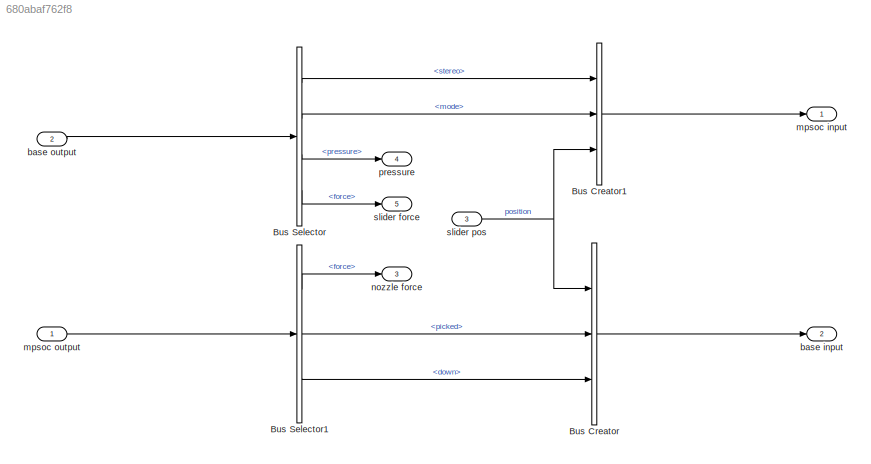
MODEL slx_680abaf762f8
KIND model
WORKSPACE source: MAT-file member
WORKSPACE ini_block_hpos = -0.4
BLOCK [BusCreator] Bus Creator
  DisplayOption = bar
  Inputs = 3
  Ports = [3, 1]
BLOCK [BusCreator] Bus Creator1
  DisplayOption = bar
  Inputs = 3
  Ports = [3, 1]
BLOCK [BusSelector] Bus Selector
  OutputSignals = stereo,mode,pressure,force
  Ports = [1, 4]
BLOCK [BusSelector] Bus Selector1
  OutputSignals = force,picked,down
  Ports = [1, 3]
BLOCK [Outport] base input
  BusOutputAsStruct = on
  IconDisplay = Port number
  OutDataTypeStr = Bus: slBusSliderStatus
  Port = 2
BLOCK [Inport] base output
  IconDisplay = Port number
  OutDataTypeStr = Bus: slBusBaseOps
  Port = 2
BLOCK [Outport] mpsoc input
  BusOutputAsStruct = on
  IconDisplay = Port number
  OutDataTypeStr = Bus: slBusSliderControlOps
BLOCK [Inport] mpsoc output
  IconDisplay = Port number
  OutDataTypeStr = Bus: slBusNozzleControl
BLOCK [Outport] nozzle force
  IconDisplay = Port number
  Port = 3
BLOCK [Outport] pressure
  IconDisplay = Port number
  Port = 4
BLOCK [Outport] slider force
  IconDisplay = Port number
  Port = 5
BLOCK [Inport] slider pos
  IconDisplay = Port number
  Port = 3
LINE Bus Creator1:1 -> mpsoc input:1
LINE Bus Creator:1 -> base input:1
LINE Bus Selector1:1 -> nozzle force:1
LINE Bus Selector1:2 -> Bus Creator:2
LINE Bus Selector1:3 -> Bus Creator:3
LINE Bus Selector:1 -> Bus Creator1:1
LINE Bus Selector:2 -> Bus Creator1:2
LINE Bus Selector:3 -> pressure:1
LINE Bus Selector:4 -> slider force:1
LINE base output:1 -> Bus Selector:1
LINE mpsoc output:1 -> Bus Selector1:1
NET slider pos:1 -> Bus Creator1:3, Bus Creator:1
note: NET lines group one-source signal fan-out (src -> all destinations, sorted); 1:1 wires keep LINE
